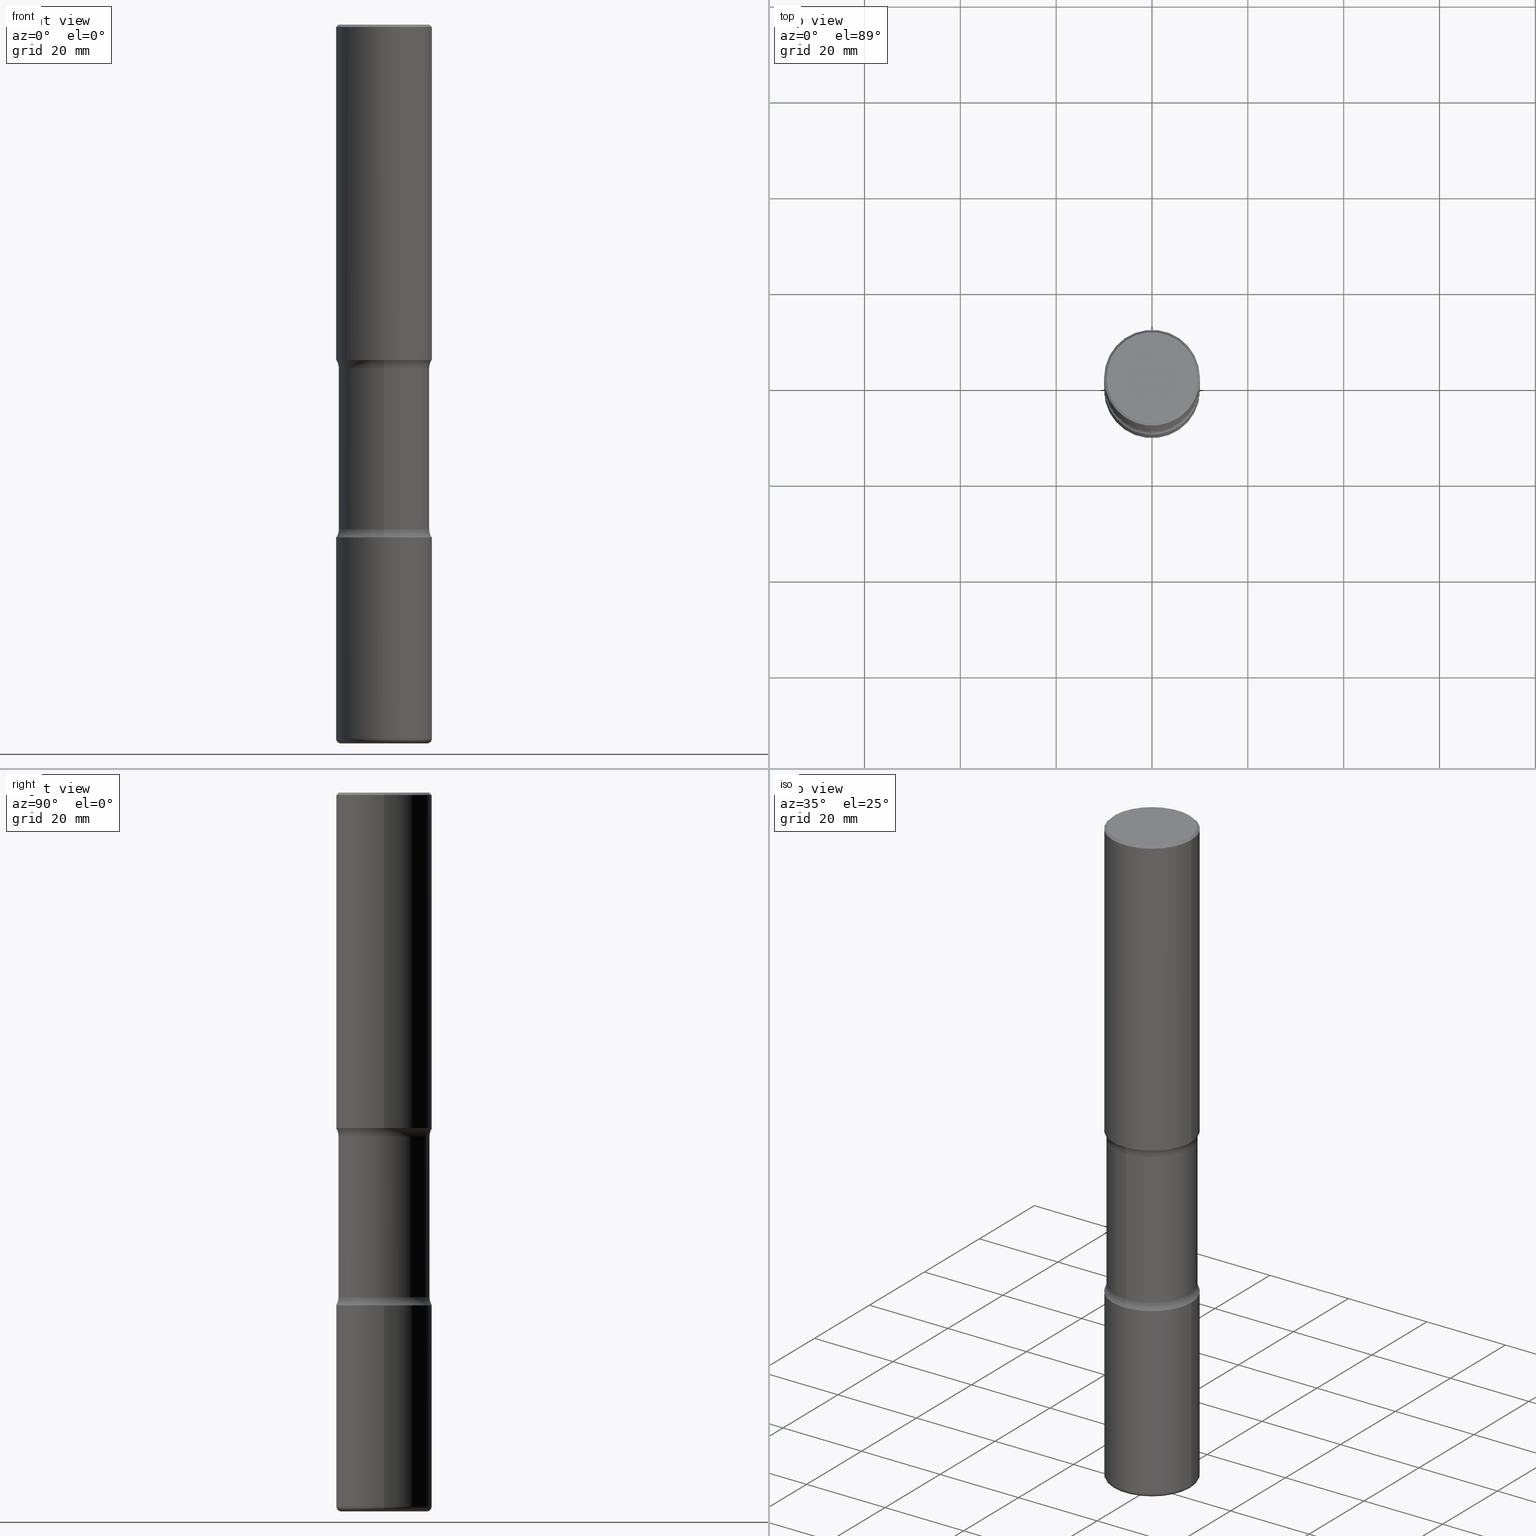
[diagram: canonical four-view strip — front | top / right | iso, engineering-drawing reading convention]
A machine part, canonical four-view strip (front | top / right | iso — engineering-drawing reading convention). The complete STEP part file that produces these views, byte-faithful:
ISO-10303-21;
HEADER;
FILE_DESCRIPTION (( 'STEP AP203' ),
    '1' );
FILE_NAME ('47740.STEP',
    '2024-03-02T08:16:23',
    ( '' ),
    ( '' ),
    'SwSTEP 2.0',
    'SolidWorks 2023',
    '' );
FILE_SCHEMA (( 'CONFIG_CONTROL_DESIGN' ));
ENDSEC;

DATA;
#1 = ORIENTED_EDGE ( 'NONE', *, *, #184, .T. ) ;
#2 = CYLINDRICAL_SURFACE ( 'NONE', #15, 0.3937000000000002164 ) ;
#3 = VERTEX_POINT ( 'NONE', #536 ) ;
#4 = CALENDAR_DATE ( 2024, 2, 3 ) ;
#5 = VECTOR ( 'NONE', #250, 39.37007874015748143 ) ;
#6 = AXIS2_PLACEMENT_3D ( 'NONE', #249, #505, #507 ) ;
#7 = EDGE_CURVE ( 'NONE', #87, #531, #291, .T. ) ;
#8 = FACE_OUTER_BOUND ( 'NONE', #275, .T. ) ;
#9 = ORIENTED_EDGE ( 'NONE', *, *, #394, .T. ) ;
#10 = DIRECTION ( 'NONE',  ( 1.000000000000000000, 0.000000000000000000, 0.000000000000000000 ) ) ;
#11 = CARTESIAN_POINT ( 'NONE',  ( 1.030178189293550378E-28, -1.470821428801063089E-14, -4.212599999999998346 ) ) ;
#12 = DIRECTION ( 'NONE',  ( 2.499563752616943710E-29, -3.414014296659653741E-15, -1.000000000000000000 ) ) ;
#13 = APPROVAL ( #345, 'UNSPECIFIED' ) ;
#14 = DIRECTION ( 'NONE',  ( 0.000000000000000000, 0.000000000000000000, 1.000000000000000000 ) ) ;
#15 = AXIS2_PLACEMENT_3D ( 'NONE', #426, #385, #299 ) ;
#16 = CARTESIAN_POINT ( 'NONE',  ( -0.3543000000000003924, -1.796392576898973579E-14, -5.866099999999998538 ) ) ;
#17 = COORDINATED_UNIVERSAL_TIME_OFFSET ( 5, 0, .BEHIND. ) ;
#18 = ADVANCED_FACE ( 'NONE', ( #408 ), #472, .T. ) ;
#19 = CARTESIAN_POINT ( 'NONE',  ( 4.890937612370298557E-31, -6.982962677686327354E-17, -0.02000000000000010103 ) ) ;
#20 = DIRECTION ( 'NONE',  ( -2.445468806185136597E-29, 3.491481338843145583E-15, 1.000000000000000000 ) ) ;
#21 = CARTESIAN_POINT ( 'NONE',  ( -0.3736999999999999211, 2.644447966039788269E-15, 8.537024980182450727E-18 ) ) ;
#22 = ORIENTED_EDGE ( 'NONE', *, *, #316, .F. ) ;
#23 = LINE ( 'NONE', #278, #466 ) ;
#24 = EDGE_LOOP ( 'NONE', ( #235, #305, #109, #251 ) ) ;
#25 = CYLINDRICAL_SURFACE ( 'NONE', #246, 0.3740000000000001656 ) ;
#26 = AXIS2_PLACEMENT_3D ( 'NONE', #241, #417, #371 ) ;
#27 = DIRECTION ( 'NONE',  ( -1.000000000000000000, 6.982962677686265922E-15, -4.876176775795935793E-29 ) ) ;
#28 = AXIS2_PLACEMENT_3D ( 'NONE', #35, #553, #42 ) ;
#29 = CARTESIAN_POINT ( 'NONE',  ( 1.030178189293550378E-28, -1.470821428801063089E-14, -4.212599999999998346 ) ) ;
#30 = ORIENTED_EDGE ( 'NONE', *, *, #554, .T. ) ;
#31 = ADVANCED_FACE ( 'NONE', ( #321 ), #290, .T. ) ;
#32 = DIRECTION ( 'NONE',  ( 6.982962677686265922E-15, 1.000000000000000000, -3.414014296659653741E-15 ) ) ;
#33 = ORIENTED_EDGE ( 'NONE', *, *, #532, .T. ) ;
#34 = APPROVAL ( #181, 'UNSPECIFIED' ) ;
#35 = CARTESIAN_POINT ( 'NONE',  ( 1.453329336974072664E-28, -2.048779909082575425E-14, -5.905499999999998195 ) ) ;
#36 = CIRCLE ( 'NONE', #526, 0.3740000000000001656 ) ;
#37 = AXIS2_PLACEMENT_3D ( 'NONE', #393, #14, #10 ) ;
#38 = ADVANCED_FACE ( 'NONE', ( #231 ), #132, .T. ) ;
#39 = EDGE_CURVE ( 'NONE', #476, #450, #214, .T. ) ;
#40 = FACE_OUTER_BOUND ( 'NONE', #398, .T. ) ;
#41 = ORIENTED_EDGE ( 'NONE', *, *, #43, .F. ) ;
#42 = DIRECTION ( 'NONE',  ( 6.982962677686266711E-15, 1.000000000000000000, -2.921762560068729411E-15 ) ) ;
#43 = EDGE_CURVE ( 'NONE', #3, #53, #460, .T. ) ;
#44 = CIRCLE ( 'NONE', #177, 0.3937000000000004385 ) ;
#45 =( NAMED_UNIT ( * ) SI_UNIT ( $, .STERADIAN. ) SOLID_ANGLE_UNIT ( ) );
#46 = AXIS2_PLACEMENT_3D ( 'NONE', #183, #415, #363 ) ;
#47 = EDGE_CURVE ( 'NONE', #506, #53, #300, .T. ) ;
#48 = AXIS2_PLACEMENT_3D ( 'NONE', #29, #136, #98 ) ;
#49 = AXIS2_PLACEMENT_3D ( 'NONE', #173, #439, #96 ) ;
#50 = DIRECTION ( 'NONE',  ( 6.982962677686265922E-15, 1.000000000000000000, -3.414014296659653741E-15 ) ) ;
#51 = COORDINATED_UNIVERSAL_TIME_OFFSET ( 5, 0, .BEHIND. ) ;
#52 = DIRECTION ( 'NONE',  ( -6.982962677686265922E-15, -1.000000000000000000, 3.414014296659653741E-15 ) ) ;
#53 = VERTEX_POINT ( 'NONE', #542 ) ;
#54 = PERSON_AND_ORGANIZATION ( #219, #550 ) ;
#55 = ORIENTED_EDGE ( 'NONE', *, *, #418, .T. ) ;
#56 = EDGE_CURVE ( 'NONE', #329, #99, #325, .T. ) ;
#57 = DIRECTION ( 'NONE',  ( 2.499563752616943710E-29, -3.414014296659653741E-15, -1.000000000000000000 ) ) ;
#58 = CIRCLE ( 'NONE', #117, 0.3937000000000002164 ) ;
#59 = DIRECTION ( 'NONE',  ( 1.000000000000000000, -6.982962677686265133E-15, 0.000000000000000000 ) ) ;
#60 = DATE_AND_TIME ( #113, #255 ) ;
#61 = ORIENTED_EDGE ( 'NONE', *, *, #552, .F. ) ;
#62 = DIRECTION ( 'NONE',  ( 1.000000000000000000, -6.982962677686266711E-15, 4.876176775795935793E-29 ) ) ;
#63 = ORIENTED_EDGE ( 'NONE', *, *, #390, .F. ) ;
#64 = ORIENTED_EDGE ( 'NONE', *, *, #468, .F. ) ;
#65 = ORIENTED_EDGE ( 'NONE', *, *, #184, .F. ) ;
#66 = EDGE_CURVE ( 'NONE', #130, #540, #515, .T. ) ;
#67 = FACE_OUTER_BOUND ( 'NONE', #368, .T. ) ;
#68 = CARTESIAN_POINT ( 'NONE',  ( 1.434536456396262699E-28, -2.048137868178777275E-14, -5.866099999999998538 ) ) ;
#69 = AXIS2_PLACEMENT_3D ( 'NONE', #370, #110, #185 ) ;
#70 = DIRECTION ( 'NONE',  ( 6.982962677686266711E-15, 1.000000000000000000, -2.921762560068729411E-15 ) ) ;
#71 = CARTESIAN_POINT ( 'NONE',  ( -2.565826251166408560E-15, -0.3740000000000206493, -5.905499999999997307 ) ) ;
#72 = DIRECTION ( 'NONE',  ( -2.445468806185136597E-29, 3.491481338843145583E-15, 1.000000000000000000 ) ) ;
#73 = ORIENTED_EDGE ( 'NONE', *, *, #211, .F. ) ;
#74 = ADVANCED_FACE ( 'NONE', ( #152 ), #380, .T. ) ;
#75 = CARTESIAN_POINT ( 'NONE',  ( 0.3936999999999999389, -2.770807688499514945E-15, -0.02000000000000010103 ) ) ;
#76 = AXIS2_PLACEMENT_3D ( 'NONE', #497, #313, #32 ) ;
#77 = CARTESIAN_POINT ( 'NONE',  ( 0.3543000000000003924, -2.309300672324243991E-14, -5.905499999999999972 ) ) ;
#78 = LOCAL_TIME ( 3, 16, 23.00000000000000000, #137 ) ;
#79 = DIRECTION ( 'NONE',  ( 2.438088387897960049E-29, -3.491481338843145188E-15, -1.000000000000000000 ) ) ;
#80 = CARTESIAN_POINT ( 'NONE',  ( -2.700978061722549884E-15, -0.3937000000000149269, -4.212599999999997458 ) ) ;
#81 = DIRECTION ( 'NONE',  ( 2.499563752616943710E-29, -3.414014296659653741E-15, -1.000000000000000000 ) ) ;
#82 = CARTESIAN_POINT ( 'NONE',  ( 0.3937000000000002164, -2.749192406205084794E-15, 1.919750796630861012E-29 ) ) ;
#83 = CIRCLE ( 'NONE', #159, 0.3937000000000002720 ) ;
#84 = DIRECTION ( 'NONE',  ( -1.000000000000000000, 6.982962677686265922E-15, -4.883557194083112340E-29 ) ) ;
#85 = COORDINATED_UNIVERSAL_TIME_OFFSET ( 5, 0, .BEHIND. ) ;
#86 = CARTESIAN_POINT ( 'NONE',  ( 2.611628041454766160E-15, 0.3739999999999856772, -4.145243411606584161 ) ) ;
#87 = VERTEX_POINT ( 'NONE', #307 ) ;
#88 = DATE_AND_TIME ( #521, #144 ) ;
#89 = EDGE_CURVE ( 'NONE', #198, #531, #206, .T. ) ;
#90 = ORIENTED_EDGE ( 'NONE', *, *, #468, .T. ) ;
#91 = CLOSED_SHELL ( 'NONE', ( #229, #168, #18, #379, #496, #125 ) ) ;
#92 = CIRCLE ( 'NONE', #480, 0.3543000000000003924 ) ;
#93 = CARTESIAN_POINT ( 'NONE',  ( -0.3937000000000002720, -1.479738973421168625E-14, -4.212599999999998346 ) ) ;
#94 = PERSON_AND_ORGANIZATION ( #219, #550 ) ;
#95 = ORIENTED_EDGE ( 'NONE', *, *, #316, .T. ) ;
#96 = DIRECTION ( 'NONE',  ( 1.000000000000000000, -6.982962677686280910E-15, 0.000000000000000000 ) ) ;
#97 = ORIENTED_EDGE ( 'NONE', *, *, #89, .F. ) ;
#98 = DIRECTION ( 'NONE',  ( -1.000000000000000000, 6.982962677686265922E-15, -4.876176775795935793E-29 ) ) ;
#99 = VERTEX_POINT ( 'NONE', #86 ) ;
#100 = AXIS2_PLACEMENT_3D ( 'NONE', #108, #485, #102 ) ;
#101 = DIRECTION ( 'NONE',  ( 6.982962677686265922E-15, 1.000000000000000000, -2.775563112689114723E-15 ) ) ;
#102 = DIRECTION ( 'NONE',  ( 1.000000000000000000, -6.982962677686265133E-15, 0.000000000000000000 ) ) ;
#103 = ORIENTED_EDGE ( 'NONE', *, *, #310, .F. ) ;
#104 = DIRECTION ( 'NONE',  ( 6.982962677686265922E-15, 1.000000000000000000, -2.775563112689114723E-15 ) ) ;
#105 = EDGE_LOOP ( 'NONE', ( #9, #174, #149, #156 ) ) ;
#106 = ADVANCED_FACE ( 'NONE', ( #8 ), #141, .F. ) ;
#107 = UNCERTAINTY_MEASURE_WITH_UNIT (LENGTH_MEASURE( 1.000000000000000082E-05 ), #218, 'distance_accuracy_value', 'NONE');
#108 = CARTESIAN_POINT ( 'NONE',  ( 6.739467482965614869E-29, -9.622173421717819657E-15, -2.755899999999998240 ) ) ;
#109 = ORIENTED_EDGE ( 'NONE', *, *, #500, .F. ) ;
#110 = DIRECTION ( 'NONE',  ( 1.000000000000000000, -6.860497997771530774E-15, 4.841747577276637457E-29 ) ) ;
#111 = CIRCLE ( 'NONE', #343, 0.3937000000000002720 ) ;
#112 = ORIENTED_EDGE ( 'NONE', *, *, #39, .T. ) ;
#113 = CALENDAR_DATE ( 2024, 2, 3 ) ;
#114 = DIRECTION ( 'NONE',  ( -2.445468806185136877E-29, 3.491481338843145188E-15, 1.000000000000000000 ) ) ;
#115 = ORIENTED_EDGE ( 'NONE', *, *, #66, .F. ) ;
#116 = DIRECTION ( 'NONE',  ( 6.982962677686265922E-15, 1.000000000000000000, -3.414014296659653741E-15 ) ) ;
#117 = AXIS2_PLACEMENT_3D ( 'NONE', #269, #445, #59 ) ;
#118 = APPLICATION_CONTEXT ( 'configuration controlled 3d designs of mechanical parts and assemblies' ) ;
#119 = LINE ( 'NONE', #82, #457 ) ;
#120 = CARTESIAN_POINT ( 'NONE',  ( 2.609533152651356620E-15, 0.3736999999999999211, -1.300498063835582814E-15 ) ) ;
#121 = CARTESIAN_POINT ( 'NONE',  ( 2.749192406205151847E-15, 0.3936999999999906685, -2.755899999999999572 ) ) ;
#122 = DATE_AND_TIME ( #222, #356 ) ;
#123 = AXIS2_PLACEMENT_3D ( 'NONE', #19, #240, #530 ) ;
#124 = SECURITY_CLASSIFICATION ( '', '', #444 ) ;
#125 = ADVANCED_FACE ( 'NONE', ( #217 ), #435, .T. ) ;
#126 = DIRECTION ( 'NONE',  ( 1.000000000000000000, -6.982962677686266711E-15, 4.876176775795935793E-29 ) ) ;
#127 = COORDINATED_UNIVERSAL_TIME_OFFSET ( 5, 0, .BEHIND. ) ;
#128 = CC_DESIGN_PERSON_AND_ORGANIZATION_ASSIGNMENT ( #451, #447, ( #124 ) ) ;
#129 = APPLICATION_PROTOCOL_DEFINITION ( 'international standard', 'config_control_design', 1994, #538 ) ;
#130 = VERTEX_POINT ( 'NONE', #93 ) ;
#131 = APPROVAL_DATE_TIME ( #122, #420 ) ;
#132 = TOROIDAL_SURFACE ( 'NONE', #224, 0.3543000000000003924, 0.03940000000000026814 ) ;
#133 = CIRCLE ( 'NONE', #284, 0.3937000000000002720 ) ;
#134 = ADVANCED_FACE ( 'NONE', ( #346 ), #264, .F. ) ;
#135 = ORIENTED_EDGE ( 'NONE', *, *, #310, .T. ) ;
#136 = DIRECTION ( 'NONE',  ( 2.438088387897960049E-29, -3.491481338843145188E-15, -1.000000000000000000 ) ) ;
#137 = COORDINATED_UNIVERSAL_TIME_OFFSET ( 5, 0, .BEHIND. ) ;
#138 = ORIENTED_EDGE ( 'NONE', *, *, #409, .F. ) ;
#139 = CYLINDRICAL_SURFACE ( 'NONE', #510, 0.3937000000000001054 ) ;
#140 = ORIENTED_EDGE ( 'NONE', *, *, #146, .T. ) ;
#141 = TOROIDAL_SURFACE ( 'NONE', #283, 0.4990000000000002212, 0.1249999999999998751 ) ;
#142 = CIRCLE ( 'NONE', #178, 0.3740000000000001656 ) ;
#143 = PLANE ( 'NONE',  #48 ) ;
#144 = LOCAL_TIME ( 3, 16, 23.00000000000000000, #127 ) ;
#145 = VERTEX_POINT ( 'NONE', #121 ) ;
#146 = EDGE_CURVE ( 'NONE', #145, #523, #44, .T. ) ;
#147 = ORIENTED_EDGE ( 'NONE', *, *, #552, .T. ) ;
#148 = FACE_OUTER_BOUND ( 'NONE', #446, .T. ) ;
#149 = ORIENTED_EDGE ( 'NONE', *, *, #7, .F. ) ;
#150 = CARTESIAN_POINT ( 'NONE',  ( 2.749192406205187346E-15, 0.3936999999999854505, -4.212600000000000122 ) ) ;
#151 = ORIENTED_EDGE ( 'NONE', *, *, #153, .F. ) ;
#152 = FACE_OUTER_BOUND ( 'NONE', #353, .T. ) ;
#153 = EDGE_CURVE ( 'NONE', #221, #99, #422, .T. ) ;
#154 = CARTESIAN_POINT ( 'NONE',  ( 0.3937000000000002164, -1.237136582792290287E-14, -2.755899999999998240 ) ) ;
#155 = CIRCLE ( 'NONE', #492, 0.3936999999999999389 ) ;
#156 = ORIENTED_EDGE ( 'NONE', *, *, #554, .F. ) ;
#157 = CARTESIAN_POINT ( 'NONE',  ( 3.484498376165515577E-15, 0.4989999999999901736, -2.823256588393415534 ) ) ;
#158 = CARTESIAN_POINT ( 'NONE',  ( 6.856494937320590076E-29, -9.925643892983175518E-15, -2.823256588393414201 ) ) ;
#159 = AXIS2_PLACEMENT_3D ( 'NONE', #533, #286, #104 ) ;
#160 = FACE_OUTER_BOUND ( 'NONE', #344, .T. ) ;
#161 = CC_DESIGN_PERSON_AND_ORGANIZATION_ASSIGNMENT ( #94, #258, ( #273 ) ) ;
#162 = DIRECTION ( 'NONE',  ( 6.982962677686266711E-15, 1.000000000000000000, -2.921762560068729411E-15 ) ) ;
#163 = ORIENTED_EDGE ( 'NONE', *, *, #47, .F. ) ;
#164 = PERSON_AND_ORGANIZATION ( #219, #550 ) ;
#165 = AXIS2_PLACEMENT_3D ( 'NONE', #529, #327, #209 ) ;
#166 = CIRCLE ( 'NONE', #188, 0.3937000000000002164 ) ;
#167 = EDGE_LOOP ( 'NONE', ( #528, #103 ) ) ;
#168 = ADVANCED_FACE ( 'NONE', ( #474 ), #301, .T. ) ;
#169 = DIRECTION ( 'NONE',  ( 2.499563752616943710E-29, -3.414014296659653741E-15, -1.000000000000000000 ) ) ;
#170 = APPROVAL_STATUS ( 'not_yet_approved' ) ;
#171 = DIRECTION ( 'NONE',  ( -2.445468806185136597E-29, 3.491481338843145583E-15, 1.000000000000000000 ) ) ;
#172 = ORIENTED_EDGE ( 'NONE', *, *, #7, .T. ) ;
#173 = CARTESIAN_POINT ( 'NONE',  ( 0.3543000000000003924, -2.295544235849201754E-14, -5.866099999999998538 ) ) ;
#174 = ORIENTED_EDGE ( 'NONE', *, *, #89, .T. ) ;
#175 = DIRECTION ( 'NONE',  ( 6.982962677686265922E-15, 1.000000000000000000, -2.775563112689113540E-15 ) ) ;
#176 = ADVANCED_FACE ( 'NONE', ( #238 ), #473, .F. ) ;
#177 = AXIS2_PLACEMENT_3D ( 'NONE', #397, #12, #175 ) ;
#178 = AXIS2_PLACEMENT_3D ( 'NONE', #551, #427, #419 ) ;
#179 = APPROVAL_PERSON_ORGANIZATION ( #164, #13, #223 ) ;
#180 = ORIENTED_EDGE ( 'NONE', *, *, #43, .T. ) ;
#181 = APPROVAL_STATUS ( 'not_yet_approved' ) ;
#182 = ORIENTED_EDGE ( 'NONE', *, *, #66, .T. ) ;
#183 = CARTESIAN_POINT ( 'NONE',  ( -2.087702828670439639E-46, 2.980686340760894400E-32, 8.537024980200822558E-18 ) ) ;
#184 = EDGE_CURVE ( 'NONE', #506, #221, #83, .T. ) ;
#185 = DIRECTION ( 'NONE',  ( 6.860497997771531562E-15, 1.000000000000000000, 0.000000000000000000 ) ) ;
#186 = ORIENTED_EDGE ( 'NONE', *, *, #285, .T. ) ;
#187 = ORIENTED_EDGE ( 'NONE', *, *, #256, .T. ) ;
#188 = AXIS2_PLACEMENT_3D ( 'NONE', #425, #72, #469 ) ;
#189 = CARTESIAN_POINT ( 'NONE',  ( -0.3543000000000003924, -1.789273103242020530E-14, -5.905499999999999972 ) ) ;
#190 = LOCAL_TIME ( 3, 16, 23.00000000000000000, #85 ) ;
#191 = DIRECTION ( 'NONE',  ( 2.499563752616943710E-29, -3.414014296659653741E-15, -1.000000000000000000 ) ) ;
#192 = DATE_TIME_ROLE ( 'classification_date' ) ;
#193 = ORIENTED_EDGE ( 'NONE', *, *, #509, .T. ) ;
#194 = DIRECTION ( 'NONE',  ( -1.000000000000000000, 6.982962677686266711E-15, 0.000000000000000000 ) ) ;
#195 = PRODUCT_DEFINITION_SHAPE ( 'NONE', 'NONE',  #288 ) ;
#196 = EDGE_LOOP ( 'NONE', ( #277, #61, #358, #140 ) ) ;
#197 = EDGE_CURVE ( 'NONE', #450, #373, #320, .T. ) ;
#198 = VERTEX_POINT ( 'NONE', #189 ) ;
#199 = CC_DESIGN_DATE_AND_TIME_ASSIGNMENT ( #311, #400, ( #288 ) ) ;
#200 = AXIS2_PLACEMENT_3D ( 'NONE', #423, #242, #337 ) ;
#201 = AXIS2_PLACEMENT_3D ( 'NONE', #212, #57, #162 ) ;
#202 = LINE ( 'NONE', #332, #437 ) ;
#203 = CYLINDRICAL_SURFACE ( 'NONE', #28, 0.3740000000000001656 ) ;
#204 = EDGE_CURVE ( 'NONE', #198, #502, #92, .T. ) ;
#205 = DIRECTION ( 'NONE',  ( -0.7071067811865466846, 2.468850131082247989E-15, -0.7071067811865483499 ) ) ;
#206 = CIRCLE ( 'NONE', #525, 0.03940000000000026814 ) ;
#207 = CC_DESIGN_PERSON_AND_ORGANIZATION_ASSIGNMENT ( #484, #436, ( #273 ) ) ;
#208 = AXIS2_PLACEMENT_3D ( 'NONE', #120, #79, #386 ) ;
#209 = DIRECTION ( 'NONE',  ( 1.000000000000000000, -6.982962677686266711E-15, 4.876176775795935793E-29 ) ) ;
#210 = CIRCLE ( 'NONE', #225, 0.3736999999999999211 ) ;
#211 = EDGE_CURVE ( 'NONE', #360, #462, #429, .T. ) ;
#212 = CARTESIAN_POINT ( 'NONE',  ( 6.829029461346524548E-29, -9.964976017815853586E-15, -2.823256588393414646 ) ) ;
#213 = EDGE_LOOP ( 'NONE', ( #490, #520 ) ) ;
#214 = CIRCLE ( 'NONE', #46, 0.3736999999999999211 ) ;
#215 = CIRCLE ( 'NONE', #123, 0.3936999999999999389 ) ;
#216 = CC_DESIGN_APPROVAL ( #420, ( #288 ) ) ;
#217 = FACE_OUTER_BOUND ( 'NONE', #263, .T. ) ;
#218 =( CONVERSION_BASED_UNIT ( 'INCH', #340 ) LENGTH_UNIT ( ) NAMED_UNIT ( #302 ) );
#219 = PERSON ( 'UNSPECIFIED', 'UNSPECIFIED', 'UNSPECIFIED', ('UNSPECIFIED'), ('UNSPECIFIED'), ('UNSPECIFIED') ) ;
#220 = EDGE_CURVE ( 'NONE', #450, #476, #210, .T. ) ;
#221 = VERTEX_POINT ( 'NONE', #150 ) ;
#222 = CALENDAR_DATE ( 2024, 2, 3 ) ;
#223 = APPROVAL_ROLE ( '' ) ;
#224 = AXIS2_PLACEMENT_3D ( 'NONE', #68, #233, #287 ) ;
#225 = AXIS2_PLACEMENT_3D ( 'NONE', #374, #361, #414 ) ;
#226 = ORIENTED_EDGE ( 'NONE', *, *, #399, .F. ) ;
#227 = FACE_OUTER_BOUND ( 'NONE', #406, .T. ) ;
#228 = DIRECTION ( 'NONE',  ( 6.982962677686266711E-15, 1.000000000000000000, -2.921762560068729411E-15 ) ) ;
#229 = ADVANCED_FACE ( 'NONE', ( #405 ), #139, .T. ) ;
#230 = DIRECTION ( 'NONE',  ( 2.499563752616943430E-29, -3.414014296659653741E-15, -1.000000000000000000 ) ) ;
#231 = FACE_OUTER_BOUND ( 'NONE', #105, .T. ) ;
#232 = DIRECTION ( 'NONE',  ( 6.982962677686265922E-15, 1.000000000000000000, -3.414014296659653741E-15 ) ) ;
#233 = DIRECTION ( 'NONE',  ( -2.445468806185136597E-29, 3.491481338843145583E-15, 1.000000000000000000 ) ) ;
#234 = SHAPE_DEFINITION_REPRESENTATION ( #195, #453 ) ;
#235 = ORIENTED_EDGE ( 'NONE', *, *, #409, .T. ) ;
#236 = CLOSED_SHELL ( 'NONE', ( #74, #38, #31, #326, #524, #312 ) ) ;
#237 = AXIS2_PLACEMENT_3D ( 'NONE', #501, #230, #232 ) ;
#238 = FACE_OUTER_BOUND ( 'NONE', #270, .T. ) ;
#239 = DIRECTION ( 'NONE',  ( -1.000000000000000000, 6.982962677686266711E-15, 0.000000000000000000 ) ) ;
#240 = DIRECTION ( 'NONE',  ( -2.445468806185136597E-29, 3.491481338843145583E-15, 1.000000000000000000 ) ) ;
#241 = CARTESIAN_POINT ( 'NONE',  ( -3.423388500887893787E-15, -0.4990000000000146541, -4.145243411606581496 ) ) ;
#242 = DIRECTION ( 'NONE',  ( -2.445468806185136597E-29, 3.491481338843145583E-15, 1.000000000000000000 ) ) ;
#243 = ORIENTED_EDGE ( 'NONE', *, *, #211, .T. ) ;
#244 = DIRECTION ( 'NONE',  ( 1.000000000000000000, -6.982962677686269077E-15, 0.000000000000000000 ) ) ;
#245 = DIRECTION ( 'NONE',  ( 6.982962677686265922E-15, 1.000000000000000000, -3.414014296659653741E-15 ) ) ;
#246 = AXIS2_PLACEMENT_3D ( 'NONE', #455, #281, #70 ) ;
#247 = CARTESIAN_POINT ( 'NONE',  ( 1.030178189293550378E-28, -1.470821428801063089E-14, -4.212599999999998346 ) ) ;
#248 = ADVANCED_FACE ( 'NONE', ( #317 ), #328, .F. ) ;
#249 = CARTESIAN_POINT ( 'NONE',  ( 1.444171603492632270E-28, -2.061894304653819197E-14, -5.905499999999999972 ) ) ;
#250 = DIRECTION ( 'NONE',  ( 2.499563752616943710E-29, -3.414014296659653741E-15, -1.000000000000000000 ) ) ;
#251 = ORIENTED_EDGE ( 'NONE', *, *, #262, .F. ) ;
#252 = FACE_OUTER_BOUND ( 'NONE', #377, .T. ) ;
#253 = EDGE_CURVE ( 'NONE', #360, #395, #23, .T. ) ;
#254 = AXIS2_PLACEMENT_3D ( 'NONE', #463, #467, #331 ) ;
#255 = LOCAL_TIME ( 3, 16, 23.00000000000000000, #17 ) ;
#256 = EDGE_CURVE ( 'NONE', #3, #523, #413, .T. ) ;
#257 =( LENGTH_UNIT ( ) NAMED_UNIT ( * ) SI_UNIT ( $, .METRE. ) );
#258 = PERSON_AND_ORGANIZATION_ROLE ( 'creator' ) ;
#259 = ORIENTED_EDGE ( 'NONE', *, *, #372, .F. ) ;
#260 = AXIS2_PLACEMENT_3D ( 'NONE', #318, #20, #534 ) ;
#261 = CC_DESIGN_SECURITY_CLASSIFICATION ( #124, ( #273 ) ) ;
#262 = EDGE_CURVE ( 'NONE', #462, #373, #324, .T. ) ;
#263 = EDGE_LOOP ( 'NONE', ( #265, #243, #402, #319 ) ) ;
#264 = PLANE ( 'NONE',  #465 ) ;
#265 = ORIENTED_EDGE ( 'NONE', *, *, #253, .F. ) ;
#266 = PERSON_AND_ORGANIZATION ( #219, #550 ) ;
#267 = DIRECTION ( 'NONE',  ( 2.499563752616943710E-29, -3.414014296659653741E-15, -1.000000000000000000 ) ) ;
#268 = CARTESIAN_POINT ( 'NONE',  ( 0.000000000000000000, 0.000000000000000000, 0.000000000000000000 ) ) ;
#269 = CARTESIAN_POINT ( 'NONE',  ( 1.434536456396262699E-28, -2.048137868178777275E-14, -5.866099999999998538 ) ) ;
#270 = EDGE_LOOP ( 'NONE', ( #65, #545, #55, #151 ) ) ;
#271 = AXIS2_PLACEMENT_3D ( 'NONE', #11, #410, #244 ) ;
#272 = CIRCLE ( 'NONE', #391, 0.1249999999999998335 ) ;
#273 = PRODUCT_DEFINITION_FORMATION_WITH_SPECIFIED_SOURCE ( 'ANY', '', #323, .NOT_KNOWN. ) ;
#274 = DIRECTION ( 'NONE',  ( -2.445468806185136597E-29, 3.491481338843145583E-15, 1.000000000000000000 ) ) ;
#275 = EDGE_LOOP ( 'NONE', ( #163, #330, #477, #90 ) ) ;
#276 = APPROVAL_ROLE ( '' ) ;
#277 = ORIENTED_EDGE ( 'NONE', *, *, #256, .F. ) ;
#278 = CARTESIAN_POINT ( 'NONE',  ( -0.3937000000000001054, 2.797406750687515181E-15, -1.936584745033357016E-29 ) ) ;
#279 = CARTESIAN_POINT ( 'NONE',  ( 4.890937612370298557E-31, -6.982962677686327354E-17, -0.02000000000000010103 ) ) ;
#280 = ORIENTED_EDGE ( 'NONE', *, *, #56, .F. ) ;
#281 = DIRECTION ( 'NONE',  ( 2.499563752616943710E-29, -3.414014296659653741E-15, -1.000000000000000000 ) ) ;
#282 = DIRECTION ( 'NONE',  ( 2.445468806185136597E-29, -3.491481338843145583E-15, -1.000000000000000000 ) ) ;
#283 = AXIS2_PLACEMENT_3D ( 'NONE', #479, #169, #50 ) ;
#284 = AXIS2_PLACEMENT_3D ( 'NONE', #247, #424, #471 ) ;
#285 = EDGE_CURVE ( 'NONE', #395, #373, #215, .T. ) ;
#286 = DIRECTION ( 'NONE',  ( 2.499563752616943710E-29, -3.414014296659653741E-15, -1.000000000000000000 ) ) ;
#287 = DIRECTION ( 'NONE',  ( 1.000000000000000000, -6.982962677686266711E-15, 4.883557194083112340E-29 ) ) ;
#288 = PRODUCT_DEFINITION ( 'UNKNOWN', '', #273, #315 ) ;
#289 = CARTESIAN_POINT ( 'NONE',  ( 1.013341980608738414E-28, -1.447825793226129018E-14, -4.145243411606583273 ) ) ;
#290 = PLANE ( 'NONE',  #556 ) ;
#291 = CIRCLE ( 'NONE', #260, 0.3937000000000002164 ) ;
#292 = FACE_OUTER_BOUND ( 'NONE', #322, .T. ) ;
#293 = AXIS2_PLACEMENT_3D ( 'NONE', #365, #416, #535 ) ;
#294 = CIRCLE ( 'NONE', #201, 0.3740000000000001656 ) ;
#295 = PRODUCT_RELATED_PRODUCT_CATEGORY ( 'detail', '', ( #323 ) ) ;
#296 = CARTESIAN_POINT ( 'NONE',  ( 2.611628041454733028E-15, 0.3739999999999901736, -2.823256588393415534 ) ) ;
#297 = ADVANCED_FACE ( 'NONE', ( #148 ), #25, .T. ) ;
#298 = DIRECTION ( 'NONE',  ( 2.499563752616943710E-29, -3.414014296659653741E-15, -1.000000000000000000 ) ) ;
#299 = DIRECTION ( 'NONE',  ( 1.000000000000000000, -6.982962677686266711E-15, 4.876176775795935793E-29 ) ) ;
#300 = CIRCLE ( 'NONE', #26, 0.1249999999999999029 ) ;
#301 = CONICAL_SURFACE ( 'NONE', #309, 0.3936999999999999389, 0.7853981633974471688 ) ;
#302 = DIMENSIONAL_EXPONENTS ( 1.000000000000000000, 0.000000000000000000, 0.000000000000000000, 0.000000000000000000, 0.000000000000000000, 0.000000000000000000, 0.000000000000000000 ) ;
#303 = ORIENTED_EDGE ( 'NONE', *, *, #418, .F. ) ;
#304 = DIRECTION ( 'NONE',  ( 6.982962677686266711E-15, 1.000000000000000000, -2.921762560068729411E-15 ) ) ;
#305 = ORIENTED_EDGE ( 'NONE', *, *, #253, .T. ) ;
#306 = ORIENTED_EDGE ( 'NONE', *, *, #390, .T. ) ;
#307 = CARTESIAN_POINT ( 'NONE',  ( 0.3937000000000004385, -2.323057108799285912E-14, -5.866099999999998538 ) ) ;
#308 = ORIENTED_EDGE ( 'NONE', *, *, #197, .T. ) ;
#309 = AXIS2_PLACEMENT_3D ( 'NONE', #432, #407, #194 ) ;
#310 = EDGE_CURVE ( 'NONE', #523, #145, #537, .T. ) ;
#311 = DATE_AND_TIME ( #4, #190 ) ;
#312 = ADVANCED_FACE ( 'NONE', ( #67 ), #143, .F. ) ;
#313 = DIRECTION ( 'NONE',  ( 2.499563752616943710E-29, -3.414014296659653741E-15, -1.000000000000000000 ) ) ;
#314 = ORIENTED_EDGE ( 'NONE', *, *, #491, .T. ) ;
#315 = DESIGN_CONTEXT ( 'detailed design', #118, 'design' ) ;
#316 = EDGE_CURVE ( 'NONE', #531, #87, #58, .T. ) ;
#317 = FACE_OUTER_BOUND ( 'NONE', #167, .T. ) ;
#318 = CARTESIAN_POINT ( 'NONE',  ( 1.434536456396262699E-28, -2.048137868178777275E-14, -5.866099999999998538 ) ) ;
#319 = ORIENTED_EDGE ( 'NONE', *, *, #285, .F. ) ;
#320 = LINE ( 'NONE', #357, #458 ) ;
#321 = FACE_OUTER_BOUND ( 'NONE', #213, .T. ) ;
#322 = EDGE_LOOP ( 'NONE', ( #522, #187, #135, #226 ) ) ;
#323 = PRODUCT ( '47740', '47740', '', ( #514 ) ) ;
#324 = LINE ( 'NONE', #494, #549 ) ;
#325 = LINE ( 'NONE', #498, #5 ) ;
#326 = ADVANCED_FACE ( 'NONE', ( #227 ), #448, .T. ) ;
#327 = DIRECTION ( 'NONE',  ( -2.445468806185136597E-29, 3.491481338843145583E-15, 1.000000000000000000 ) ) ;
#328 = PLANE ( 'NONE',  #237 ) ;
#329 = VERTEX_POINT ( 'NONE', #296 ) ;
#330 = ORIENTED_EDGE ( 'NONE', *, *, #491, .F. ) ;
#331 = DIRECTION ( 'NONE',  ( 1.000000000000000000, -6.982962677686265922E-15, 4.876176775795935793E-29 ) ) ;
#332 = CARTESIAN_POINT ( 'NONE',  ( -0.3936999999999999389, 2.679362779428219524E-15, -0.02000000000000010103 ) ) ;
#333 = ADVANCED_FACE ( 'NONE', ( #292 ), #504, .F. ) ;
#334 = LINE ( 'NONE', #470, #387 ) ;
#335 = CARTESIAN_POINT ( 'NONE',  ( -0.3936999999999999389, 2.679362779428219524E-15, -0.02000000000000010103 ) ) ;
#336 = AXIS2_PLACEMENT_3D ( 'NONE', #559, #298, #245 ) ;
#337 = DIRECTION ( 'NONE',  ( 1.000000000000000000, -6.982962677686266711E-15, 4.883557194083112340E-29 ) ) ;
#338 = DIRECTION ( 'NONE',  ( -2.445468806185136597E-29, 3.491481338843145583E-15, 1.000000000000000000 ) ) ;
#339 = ORIENTED_EDGE ( 'NONE', *, *, #509, .F. ) ;
#340 = LENGTH_MEASURE_WITH_UNIT ( LENGTH_MEASURE( 0.02539999999999999897 ), #257 );
#341 = EDGE_LOOP ( 'NONE', ( #488, #308, #442, #63 ) ) ;
#342 = CLOSED_SHELL ( 'NONE', ( #297, #176, #333, #431, #248, #134, #106, #428 ) ) ;
#343 = AXIS2_PLACEMENT_3D ( 'NONE', #378, #267, #101 ) ;
#344 = EDGE_LOOP ( 'NONE', ( #495, #95, #366, #115 ) ) ;
#345 = APPROVAL_STATUS ( 'not_yet_approved' ) ;
#346 = FACE_OUTER_BOUND ( 'NONE', #347, .T. ) ;
#347 = EDGE_LOOP ( 'NONE', ( #314, #1 ) ) ;
#348 = APPLICATION_PROTOCOL_DEFINITION ( 'international standard', 'config_control_design', 1994, #118 ) ;
#349 = MANIFOLD_SOLID_BREP ( 'Body-Move/Copy2[1]', #236 ) ;
#350 = DIRECTION ( 'NONE',  ( 2.499563752616943710E-29, -3.414014296659653741E-15, -1.000000000000000000 ) ) ;
#351 = ORIENTED_EDGE ( 'NONE', *, *, #220, .T. ) ;
#352 = AXIS2_PLACEMENT_3D ( 'NONE', #268, #171, #126 ) ;
#353 = EDGE_LOOP ( 'NONE', ( #172, #388, #339, #259 ) ) ;
#354 =( NAMED_UNIT ( * ) PLANE_ANGLE_UNIT ( ) SI_UNIT ( $, .RADIAN. ) );
#355 = CIRCLE ( 'NONE', #369, 0.3740000000000001656 ) ;
#356 = LOCAL_TIME ( 3, 16, 23.00000000000000000, #51 ) ;
#357 = CARTESIAN_POINT ( 'NONE',  ( 0.3936999999999999389, -2.770807688499514945E-15, -0.02000000000000010103 ) ) ;
#358 = ORIENTED_EDGE ( 'NONE', *, *, #399, .T. ) ;
#359 = APPROVAL_DATE_TIME ( #60, #34 ) ;
#360 = VERTEX_POINT ( 'NONE', #430 ) ;
#361 = DIRECTION ( 'NONE',  ( -2.445468806185136597E-29, 3.491481338843145583E-15, 1.000000000000000000 ) ) ;
#362 = MANIFOLD_SOLID_BREP ( 'Body-Move/Copy2[4]', #342 ) ;
#363 = DIRECTION ( 'NONE',  ( 1.000000000000000000, -6.982962677686266711E-15, 4.876212485538976239E-29 ) ) ;
#364 = FACE_OUTER_BOUND ( 'NONE', #482, .T. ) ;
#365 = CARTESIAN_POINT ( 'NONE',  ( 6.660667374498401538E-29, -9.735019662066511300E-15, -2.755899999999998240 ) ) ;
#366 = ORIENTED_EDGE ( 'NONE', *, *, #372, .T. ) ;
#367 = AXIS2_PLACEMENT_3D ( 'NONE', #158, #81, #116 ) ;
#368 = EDGE_LOOP ( 'NONE', ( #193, #182 ) ) ;
#369 = AXIS2_PLACEMENT_3D ( 'NONE', #513, #350, #304 ) ;
#370 = CARTESIAN_POINT ( 'NONE',  ( -3.423388500887925735E-15, -0.4990000000000099356, -2.823256588393412425 ) ) ;
#371 = DIRECTION ( 'NONE',  ( 6.860497997771527618E-15, 1.000000000000000000, 0.000000000000000000 ) ) ;
#372 = EDGE_CURVE ( 'NONE', #87, #540, #119, .T. ) ;
#373 = VERTEX_POINT ( 'NONE', #75 ) ;
#374 = CARTESIAN_POINT ( 'NONE',  ( -2.087702828670439639E-46, 2.980686340760894400E-32, 8.537024980200822558E-18 ) ) ;
#375 = ORIENTED_EDGE ( 'NONE', *, *, #204, .T. ) ;
#376 = PLANE ( 'NONE',  #208 ) ;
#377 = EDGE_LOOP ( 'NONE', ( #112, #351 ) ) ;
#378 = CARTESIAN_POINT ( 'NONE',  ( 1.030178189293550378E-28, -1.470821428801063089E-14, -4.212599999999998346 ) ) ;
#379 = ADVANCED_FACE ( 'NONE', ( #252 ), #376, .F. ) ;
#380 = CYLINDRICAL_SURFACE ( 'NONE', #165, 0.3937000000000002164 ) ;
#381 = FACE_OUTER_BOUND ( 'NONE', #196, .T. ) ;
#382 = CARTESIAN_POINT ( 'NONE',  ( 4.890937612370298557E-31, -6.982962677686327354E-17, -0.02000000000000010103 ) ) ;
#383 = CC_DESIGN_DATE_AND_TIME_ASSIGNMENT ( #499, #192, ( #124 ) ) ;
#384 = DIRECTION ( 'NONE',  ( -6.982962677686268288E-15, -1.000000000000000000, 0.000000000000000000 ) ) ;
#385 = DIRECTION ( 'NONE',  ( -2.445468806185136597E-29, 3.491481338843145583E-15, 1.000000000000000000 ) ) ;
#386 = DIRECTION ( 'NONE',  ( -1.000000000000000000, 6.982962677686265922E-15, -4.876176775795935793E-29 ) ) ;
#387 = VECTOR ( 'NONE', #508, 39.37007874015748143 ) ;
#388 = ORIENTED_EDGE ( 'NONE', *, *, #434, .T. ) ;
#389 = CC_DESIGN_PERSON_AND_ORGANIZATION_ASSIGNMENT ( #266, #475, ( #323 ) ) ;
#390 = EDGE_CURVE ( 'NONE', #476, #395, #202, .T. ) ;
#391 = AXIS2_PLACEMENT_3D ( 'NONE', #157, #512, #384 ) ;
#392 = CIRCLE ( 'NONE', #49, 0.03940000000000026814 ) ;
#393 = CARTESIAN_POINT ( 'NONE',  ( 0.000000000000000000, 0.000000000000000000, 0.000000000000000000 ) ) ;
#394 = EDGE_CURVE ( 'NONE', #502, #198, #404, .T. ) ;
#395 = VERTEX_POINT ( 'NONE', #335 ) ;
#396 = APPROVAL_ROLE ( '' ) ;
#397 = CARTESIAN_POINT ( 'NONE',  ( 6.660667374498401538E-29, -9.735019662066511300E-15, -2.755899999999998240 ) ) ;
#398 = EDGE_LOOP ( 'NONE', ( #41, #33, #478, #303 ) ) ;
#399 = EDGE_CURVE ( 'NONE', #329, #145, #272, .T. ) ;
#400 = DATE_TIME_ROLE ( 'creation_date' ) ;
#401 = DIRECTION ( 'NONE',  ( 7.105427357601001859E-15, 1.000000000000000000, -3.491481338843145583E-15 ) ) ;
#402 = ORIENTED_EDGE ( 'NONE', *, *, #262, .T. ) ;
#403 = CARTESIAN_POINT ( 'NONE',  ( 0.3937000000000002720, -1.745740669421571411E-14, -4.212599999999998346 ) ) ;
#404 = CIRCLE ( 'NONE', #6, 0.3543000000000003924 ) ;
#405 = FACE_OUTER_BOUND ( 'NONE', #24, .T. ) ;
#406 = EDGE_LOOP ( 'NONE', ( #97, #375, #30, #22 ) ) ;
#407 = DIRECTION ( 'NONE',  ( 2.445468806185136597E-29, -3.491481338843145583E-15, -1.000000000000000000 ) ) ;
#408 = FACE_OUTER_BOUND ( 'NONE', #486, .T. ) ;
#409 = EDGE_CURVE ( 'NONE', #462, #360, #166, .T. ) ;
#410 = DIRECTION ( 'NONE',  ( -2.445468806185136597E-29, 3.491481338843145583E-15, 1.000000000000000000 ) ) ;
#411 = DIRECTION ( 'NONE',  ( -2.445468806185136877E-29, 3.491481338843145188E-15, 1.000000000000000000 ) ) ;
#412 = CARTESIAN_POINT ( 'NONE',  ( 1.723044131305019458E-29, -3.883280511437256617E-14, -5.905499999999998195 ) ) ;
#413 = CIRCLE ( 'NONE', #69, 0.1249999999999998335 ) ;
#414 = DIRECTION ( 'NONE',  ( 1.000000000000000000, -6.982962677686266711E-15, 4.876212485538976239E-29 ) ) ;
#415 = DIRECTION ( 'NONE',  ( -2.445468806185136597E-29, 3.491481338843145583E-15, 1.000000000000000000 ) ) ;
#416 = DIRECTION ( 'NONE',  ( 2.499563752616943710E-29, -3.414014296659653741E-15, -1.000000000000000000 ) ) ;
#417 = DIRECTION ( 'NONE',  ( 1.000000000000000000, -6.860497997771530774E-15, 4.841747577276637457E-29 ) ) ;
#418 = EDGE_CURVE ( 'NONE', #53, #99, #142, .T. ) ;
#419 = DIRECTION ( 'NONE',  ( 6.982962677686266711E-15, 1.000000000000000000, -2.921762560068729411E-15 ) ) ;
#420 = APPROVAL ( #170, 'UNSPECIFIED' ) ;
#421 = AXIS2_PLACEMENT_3D ( 'NONE', #279, #282, #239 ) ;
#422 = CIRCLE ( 'NONE', #557, 0.1249999999999999029 ) ;
#423 = CARTESIAN_POINT ( 'NONE',  ( 1.434536456396262699E-28, -2.048137868178777275E-14, -5.866099999999998538 ) ) ;
#424 = DIRECTION ( 'NONE',  ( -2.445468806185136597E-29, 3.491481338843145583E-15, 1.000000000000000000 ) ) ;
#425 = CARTESIAN_POINT ( 'NONE',  ( 6.739467482965614869E-29, -9.622173421717819657E-15, -2.755899999999998240 ) ) ;
#426 = CARTESIAN_POINT ( 'NONE',  ( 0.000000000000000000, 0.000000000000000000, 0.000000000000000000 ) ) ;
#427 = DIRECTION ( 'NONE',  ( 2.499563752616943710E-29, -3.414014296659653741E-15, -1.000000000000000000 ) ) ;
#428 = ADVANCED_FACE ( 'NONE', ( #40 ), #203, .T. ) ;
#429 = CIRCLE ( 'NONE', #100, 0.3937000000000002164 ) ;
#430 = CARTESIAN_POINT ( 'NONE',  ( -0.3937000000000002720, -2.048594773559823141E-15, -2.755899999999998240 ) ) ;
#431 = ADVANCED_FACE ( 'NONE', ( #381 ), #516, .F. ) ;
#432 = CARTESIAN_POINT ( 'NONE',  ( 4.890937612370298557E-31, -6.982962677686327354E-17, -0.02000000000000010103 ) ) ;
#433 = PERSON_AND_ORGANIZATION ( #219, #550 ) ;
#434 = EDGE_CURVE ( 'NONE', #531, #130, #334, .T. ) ;
#435 = CYLINDRICAL_SURFACE ( 'NONE', #352, 0.3937000000000001054 ) ;
#436 = PERSON_AND_ORGANIZATION_ROLE ( 'design_supplier' ) ;
#437 = VECTOR ( 'NONE', #205, 39.37007874015748143 ) ;
#438 = APPROVAL_PERSON_ORGANIZATION ( #54, #420, #396 ) ;
#439 = DIRECTION ( 'NONE',  ( -6.982962677686266711E-15, -1.000000000000000000, 3.491481338843145583E-15 ) ) ;
#440 = ORIENTED_EDGE ( 'NONE', *, *, #39, .F. ) ;
#441 = DIRECTION ( 'NONE',  ( -2.499563752616943430E-29, 3.414014296659653741E-15, 1.000000000000000000 ) ) ;
#442 = ORIENTED_EDGE ( 'NONE', *, *, #500, .T. ) ;
#443 = DIRECTION ( 'NONE',  ( -6.982962677686264344E-15, -1.000000000000000000, 0.000000000000000000 ) ) ;
#444 = SECURITY_CLASSIFICATION_LEVEL ( 'unclassified' ) ;
#445 = DIRECTION ( 'NONE',  ( -2.445468806185136597E-29, 3.491481338843145583E-15, 1.000000000000000000 ) ) ;
#446 = EDGE_LOOP ( 'NONE', ( #147, #180, #64, #280 ) ) ;
#447 = PERSON_AND_ORGANIZATION_ROLE ( 'classification_officer' ) ;
#448 = TOROIDAL_SURFACE ( 'NONE', #200, 0.3543000000000003924, 0.03940000000000026814 ) ;
#449 = DIRECTION ( 'NONE',  ( -2.445468806185136597E-29, 3.491481338843145583E-15, 1.000000000000000000 ) ) ;
#450 = VERTEX_POINT ( 'NONE', #546 ) ;
#451 = PERSON_AND_ORGANIZATION ( #219, #550 ) ;
#452 = DIRECTION ( 'NONE',  ( 1.000000000000000000, -6.982962677686265133E-15, 0.000000000000000000 ) ) ;
#453 = ADVANCED_BREP_SHAPE_REPRESENTATION ( '47740', ( #349, #543, #362, #37 ), #517 ) ;
#454 = CC_DESIGN_PERSON_AND_ORGANIZATION_ASSIGNMENT ( #433, #519, ( #288 ) ) ;
#455 = CARTESIAN_POINT ( 'NONE',  ( 1.453329336974072664E-28, -2.048779909082575425E-14, -5.905499999999998195 ) ) ;
#456 = DIRECTION ( 'NONE',  ( 2.438088387897960049E-29, -3.491481338843145188E-15, -1.000000000000000000 ) ) ;
#457 = VECTOR ( 'NONE', #114, 39.37007874015748143 ) ;
#458 = VECTOR ( 'NONE', #489, 39.37007874015748143 ) ;
#459 = DIRECTION ( 'NONE',  ( -2.445468806185136877E-29, 3.491481338843145188E-15, 1.000000000000000000 ) ) ;
#460 = LINE ( 'NONE', #71, #548 ) ;
#461 = DIRECTION ( 'NONE',  ( 2.499563752616943710E-29, -3.414014296659653741E-15, -1.000000000000000000 ) ) ;
#462 = VERTEX_POINT ( 'NONE', #154 ) ;
#463 = CARTESIAN_POINT ( 'NONE',  ( 6.739467482965614869E-29, -9.622173421717819657E-15, -2.755899999999998240 ) ) ;
#464 = DIRECTION ( 'NONE',  ( 1.000000000000000000, -6.982962677686266711E-15, 0.000000000000000000 ) ) ;
#465 = AXIS2_PLACEMENT_3D ( 'NONE', #527, #441, #52 ) ;
#466 = VECTOR ( 'NONE', #411, 39.37007874015748143 ) ;
#467 = DIRECTION ( 'NONE',  ( -2.438088387897960049E-29, 3.491481338843145188E-15, 1.000000000000000000 ) ) ;
#468 = EDGE_CURVE ( 'NONE', #99, #53, #36, .T. ) ;
#469 = DIRECTION ( 'NONE',  ( 1.000000000000000000, -6.982962677686265133E-15, 0.000000000000000000 ) ) ;
#470 = CARTESIAN_POINT ( 'NONE',  ( -0.3937000000000002164, 2.797406750687515970E-15, -1.936584745033357576E-29 ) ) ;
#471 = DIRECTION ( 'NONE',  ( 1.000000000000000000, -6.982962677686269077E-15, 0.000000000000000000 ) ) ;
#472 = CONICAL_SURFACE ( 'NONE', #421, 0.3936999999999999389, 0.7853981633974471688 ) ;
#473 = TOROIDAL_SURFACE ( 'NONE', #76, 0.4990000000000002212, 0.1249999999999998751 ) ;
#474 = FACE_OUTER_BOUND ( 'NONE', #341, .T. ) ;
#475 = PERSON_AND_ORGANIZATION_ROLE ( 'design_owner' ) ;
#476 = VERTEX_POINT ( 'NONE', #21 ) ;
#477 = ORIENTED_EDGE ( 'NONE', *, *, #153, .T. ) ;
#478 = ORIENTED_EDGE ( 'NONE', *, *, #56, .T. ) ;
#479 = CARTESIAN_POINT ( 'NONE',  ( 1.013706345712835491E-28, -1.447304001658688186E-14, -4.145243411606583273 ) ) ;
#480 = AXIS2_PLACEMENT_3D ( 'NONE', #544, #274, #452 ) ;
#481 = APPROVAL_DATE_TIME ( #88, #13 ) ;
#482 = EDGE_LOOP ( 'NONE', ( #138, #73 ) ) ;
#483 = CARTESIAN_POINT ( 'NONE',  ( 3.484498376165549498E-15, 0.4989999999999857327, -4.145243411606585049 ) ) ;
#484 = PERSON_AND_ORGANIZATION ( #219, #550 ) ;
#485 = DIRECTION ( 'NONE',  ( -2.445468806185136597E-29, 3.491481338843145583E-15, 1.000000000000000000 ) ) ;
#486 = EDGE_LOOP ( 'NONE', ( #547, #440, #306, #186 ) ) ;
#487 = PERSON_AND_ORGANIZATION ( #219, #550 ) ;
#488 = ORIENTED_EDGE ( 'NONE', *, *, #220, .F. ) ;
#489 = DIRECTION ( 'NONE',  ( 0.7071067811865466846, -7.319954787623252890E-15, -0.7071067811865483499 ) ) ;
#490 = ORIENTED_EDGE ( 'NONE', *, *, #394, .F. ) ;
#491 = EDGE_CURVE ( 'NONE', #221, #506, #111, .T. ) ;
#492 = AXIS2_PLACEMENT_3D ( 'NONE', #382, #338, #464 ) ;
#493 = PLANE ( 'NONE',  #254 ) ;
#494 = CARTESIAN_POINT ( 'NONE',  ( 0.3937000000000001054, -2.749192406205084005E-15, 1.919750796630860452E-29 ) ) ;
#495 = ORIENTED_EDGE ( 'NONE', *, *, #434, .F. ) ;
#496 = ADVANCED_FACE ( 'NONE', ( #364 ), #493, .F. ) ;
#497 = CARTESIAN_POINT ( 'NONE',  ( 1.013706345712835491E-28, -1.447304001658688186E-14, -4.145243411606583273 ) ) ;
#498 = CARTESIAN_POINT ( 'NONE',  ( 2.611628041454809941E-15, 0.3739999999999796820, -5.905499999999999972 ) ) ;
#499 = DATE_AND_TIME ( #503, #78 ) ;
#500 = EDGE_CURVE ( 'NONE', #373, #395, #155, .T. ) ;
#501 = CARTESIAN_POINT ( 'NONE',  ( 6.739467482965614869E-29, -9.622173421717819657E-15, -2.755899999999998240 ) ) ;
#502 = VERTEX_POINT ( 'NONE', #77 ) ;
#503 = CALENDAR_DATE ( 2024, 2, 3 ) ;
#504 = TOROIDAL_SURFACE ( 'NONE', #367, 0.4990000000000000546, 0.1249999999999998612 ) ;
#505 = DIRECTION ( 'NONE',  ( -2.445468806185136597E-29, 3.491481338843145583E-15, 1.000000000000000000 ) ) ;
#506 = VERTEX_POINT ( 'NONE', #80 ) ;
#507 = DIRECTION ( 'NONE',  ( 1.000000000000000000, -6.982962677686265133E-15, 0.000000000000000000 ) ) ;
#508 = DIRECTION ( 'NONE',  ( -2.445468806185136877E-29, 3.491481338843145188E-15, 1.000000000000000000 ) ) ;
#509 = EDGE_CURVE ( 'NONE', #540, #130, #133, .T. ) ;
#510 = AXIS2_PLACEMENT_3D ( 'NONE', #541, #449, #62 ) ;
#511 = CC_DESIGN_APPROVAL ( #13, ( #273 ) ) ;
#512 = DIRECTION ( 'NONE',  ( -1.000000000000000000, 6.982962677686265922E-15, -4.883557194083112340E-29 ) ) ;
#513 = CARTESIAN_POINT ( 'NONE',  ( 6.829029461346524548E-29, -9.964976017815853586E-15, -2.823256588393414646 ) ) ;
#514 = MECHANICAL_CONTEXT ( 'NONE', #538, 'mechanical' ) ;
#515 = CIRCLE ( 'NONE', #271, 0.3937000000000002720 ) ;
#516 = TOROIDAL_SURFACE ( 'NONE', #336, 0.4990000000000000546, 0.1249999999999998612 ) ;
#517 =( GEOMETRIC_REPRESENTATION_CONTEXT ( 3 ) GLOBAL_UNCERTAINTY_ASSIGNED_CONTEXT ( ( #107 ) ) GLOBAL_UNIT_ASSIGNED_CONTEXT ( ( #218, #354, #45 ) ) REPRESENTATION_CONTEXT ( 'NONE', 'WORKASPACE' ) );
#518 = DIRECTION ( 'NONE',  ( -1.000000000000000000, 7.105427357600976615E-15, 0.000000000000000000 ) ) ;
#519 = PERSON_AND_ORGANIZATION_ROLE ( 'creator' ) ;
#520 = ORIENTED_EDGE ( 'NONE', *, *, #204, .F. ) ;
#521 = CALENDAR_DATE ( 2024, 2, 3 ) ;
#522 = ORIENTED_EDGE ( 'NONE', *, *, #532, .F. ) ;
#523 = VERTEX_POINT ( 'NONE', #560 ) ;
#524 = ADVANCED_FACE ( 'NONE', ( #160 ), #2, .T. ) ;
#525 = AXIS2_PLACEMENT_3D ( 'NONE', #16, #401, #518 ) ;
#526 = AXIS2_PLACEMENT_3D ( 'NONE', #289, #461, #228 ) ;
#527 = CARTESIAN_POINT ( 'NONE',  ( 1.030178189293550378E-28, -1.470821428801063089E-14, -4.212599999999998346 ) ) ;
#528 = ORIENTED_EDGE ( 'NONE', *, *, #146, .F. ) ;
#529 = CARTESIAN_POINT ( 'NONE',  ( 0.000000000000000000, 0.000000000000000000, 0.000000000000000000 ) ) ;
#530 = DIRECTION ( 'NONE',  ( 1.000000000000000000, -6.982962677686266711E-15, 0.000000000000000000 ) ) ;
#531 = VERTEX_POINT ( 'NONE', #555 ) ;
#532 = EDGE_CURVE ( 'NONE', #3, #329, #355, .T. ) ;
#533 = CARTESIAN_POINT ( 'NONE',  ( 1.030178189293550378E-28, -1.470821428801063089E-14, -4.212599999999998346 ) ) ;
#534 = DIRECTION ( 'NONE',  ( 1.000000000000000000, -6.982962677686265133E-15, 0.000000000000000000 ) ) ;
#535 = DIRECTION ( 'NONE',  ( 6.982962677686265922E-15, 1.000000000000000000, -2.775563112689113540E-15 ) ) ;
#536 = CARTESIAN_POINT ( 'NONE',  ( -2.633402156444536217E-15, -0.3740000000000101577, -2.823256588393413313 ) ) ;
#537 = CIRCLE ( 'NONE', #293, 0.3937000000000004385 ) ;
#538 = APPLICATION_CONTEXT ( 'configuration controlled 3d designs of mechanical parts and assemblies' ) ;
#539 = APPROVAL_PERSON_ORGANIZATION ( #487, #34, #276 ) ;
#540 = VERTEX_POINT ( 'NONE', #403 ) ;
#541 = CARTESIAN_POINT ( 'NONE',  ( 0.000000000000000000, 0.000000000000000000, 0.000000000000000000 ) ) ;
#542 = CARTESIAN_POINT ( 'NONE',  ( -2.633402156444500718E-15, -0.3740000000000146541, -4.145243411606582384 ) ) ;
#543 = MANIFOLD_SOLID_BREP ( 'Body-Move/Copy2[2]', #91 ) ;
#544 = CARTESIAN_POINT ( 'NONE',  ( 1.444171603492632270E-28, -2.061894304653819197E-14, -5.905499999999999972 ) ) ;
#545 = ORIENTED_EDGE ( 'NONE', *, *, #47, .T. ) ;
#546 = CARTESIAN_POINT ( 'NONE',  ( 0.3736999999999999211, -2.667287895133367964E-15, 8.537024980219274507E-18 ) ) ;
#547 = ORIENTED_EDGE ( 'NONE', *, *, #197, .F. ) ;
#548 = VECTOR ( 'NONE', #191, 39.37007874015748143 ) ;
#549 = VECTOR ( 'NONE', #459, 39.37007874015748143 ) ;
#550 = ORGANIZATION ( 'UNSPECIFIED', 'UNSPECIFIED', '' ) ;
#551 = CARTESIAN_POINT ( 'NONE',  ( 1.013341980608738414E-28, -1.447825793226129018E-14, -4.145243411606583273 ) ) ;
#552 = EDGE_CURVE ( 'NONE', #329, #3, #294, .T. ) ;
#553 = DIRECTION ( 'NONE',  ( 2.499563752616943710E-29, -3.414014296659653741E-15, -1.000000000000000000 ) ) ;
#554 = EDGE_CURVE ( 'NONE', #502, #87, #392, .T. ) ;
#555 = CARTESIAN_POINT ( 'NONE',  ( -0.3937000000000004385, -1.768397193110025560E-14, -5.866099999999998538 ) ) ;
#556 = AXIS2_PLACEMENT_3D ( 'NONE', #412, #456, #27 ) ;
#557 = AXIS2_PLACEMENT_3D ( 'NONE', #483, #84, #443 ) ;
#558 = CC_DESIGN_APPROVAL ( #34, ( #124 ) ) ;
#559 = CARTESIAN_POINT ( 'NONE',  ( 6.856494937320590076E-29, -9.925643892983175518E-15, -2.823256588393414201 ) ) ;
#560 = CARTESIAN_POINT ( 'NONE',  ( -2.700978061722587749E-15, -0.3937000000000100419, -2.755899999999997352 ) ) ;
ENDSEC;
END-ISO-10303-21;
